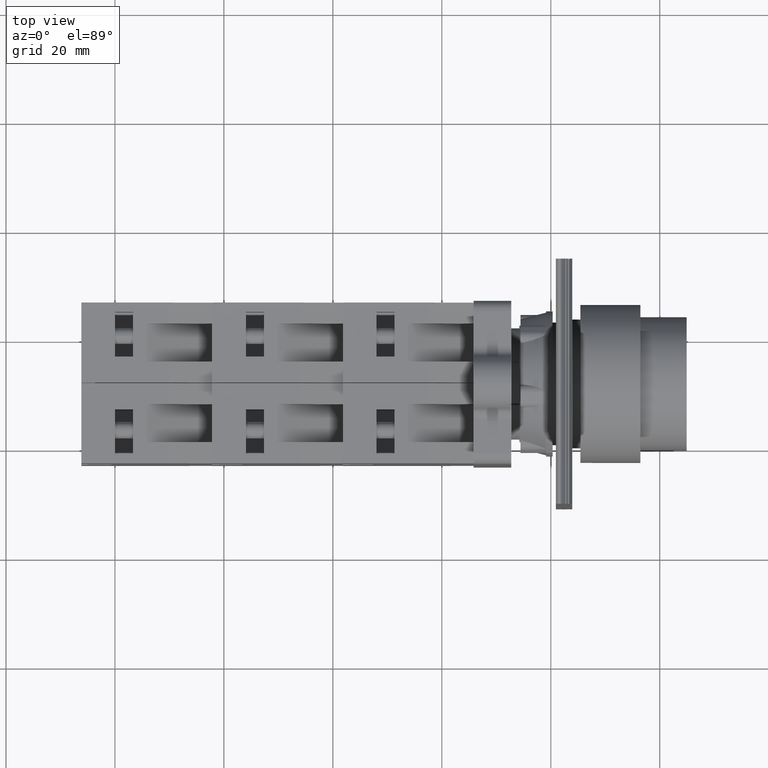
[diagram: clean part render]
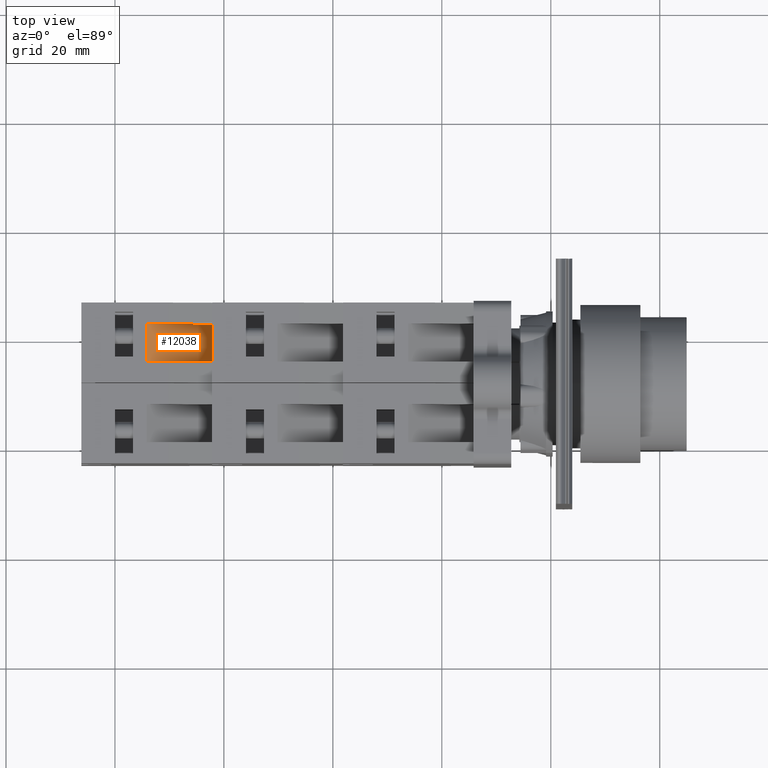
[diagram: same view with one face highlighted and labeled with its STEP entity id]
A machine part, top view. The second image highlights one B-rep face of the part: STEP entity #12038.
In plain terms, the highlighted face is a freeform B-spline surface patch.
Its self-contained STEP definition (entity closure, byte-faithful):
#11983=CARTESIAN_POINT('',(-44.936741828918457,11.797073323279610,10.850000000000000));
#11984=VERTEX_POINT('',#11983);
#11991=CARTESIAN_POINT('',(-35.936741828918450,-0.202926676720384,10.850000000000000));
#11992=VERTEX_POINT('',#11991);
#11993=CARTESIAN_POINT('',(-35.936741828918450,-0.202926676720384,10.850000000000000));
#11994=DIRECTION('',(-0.600000000000000,0.800000000000000,0.0));
#11995=VECTOR('',#11994,15.0);
#11996=LINE('',#11993,#11995);
#11997=EDGE_CURVE('',#11992,#11984,#11996,.T.);
#12008=CARTESIAN_POINT('',(-44.936741828918464,11.797073323279616,3.850000000000000));
#12009=CARTESIAN_POINT('',(-44.936741828918464,11.797073323279616,10.850000000000000));
#12010=CARTESIAN_POINT('',(-35.936741828918450,-0.202926676720383,3.850000000000000));
#12011=CARTESIAN_POINT('',(-35.936741828918450,-0.202926676720383,10.850000000000000));
#12012=B_SPLINE_SURFACE_WITH_KNOTS('',1,1,((#12008,#12010),(#12009,#12011)),.UNSPECIFIED.,.F.,.F.,.U.,(2,2),(2,2),(0.0,7.0),(0.0,15.000000000000007),.UNSPECIFIED.);
#12013=CARTESIAN_POINT('',(-44.936741828918457,11.797073323279610,3.850000000000001));
#12014=VERTEX_POINT('',#12013);
#12015=CARTESIAN_POINT('',(-35.936741828918450,-0.202926676720384,3.850000000000001));
#12016=VERTEX_POINT('',#12015);
#12017=CARTESIAN_POINT('',(-44.936741828918457,11.797073323279610,3.850000000000001));
#12018=DIRECTION('',(0.600000000000000,-0.800000000000000,0.0));
#12019=VECTOR('',#12018,15.0);
#12020=LINE('',#12017,#12019);
#12021=EDGE_CURVE('',#12014,#12016,#12020,.T.);
#12022=ORIENTED_EDGE('',*,*,#12021,.T.);
#12023=CARTESIAN_POINT('',(-35.936741828918450,-0.202926676720384,10.850000000000000));
#12024=DIRECTION('',(0.0,0.0,-1.0));
#12025=VECTOR('',#12024,6.999999999999999);
#12026=LINE('',#12023,#12025);
#12027=EDGE_CURVE('',#11992,#12016,#12026,.T.);
#12028=ORIENTED_EDGE('',*,*,#12027,.F.);
#12029=ORIENTED_EDGE('',*,*,#11997,.T.);
#12030=CARTESIAN_POINT('',(-44.936741828918457,11.797073323279610,3.850000000000001));
#12031=DIRECTION('',(0.0,0.0,1.0));
#12032=VECTOR('',#12031,6.999999999999999);
#12033=LINE('',#12030,#12032);
#12034=EDGE_CURVE('',#12014,#11984,#12033,.T.);
#12035=ORIENTED_EDGE('',*,*,#12034,.F.);
#12036=EDGE_LOOP('',(#12022,#12028,#12029,#12035));
#12037=FACE_OUTER_BOUND('',#12036,.T.);
#12038=ADVANCED_FACE('',(#12037),#12012,.F.);